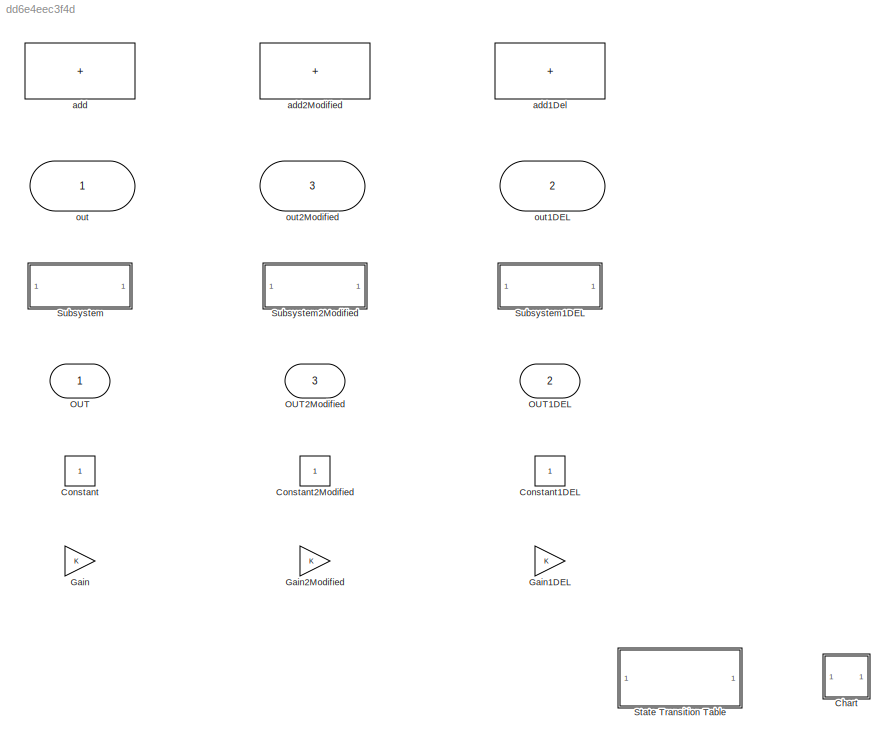
MODEL slx_dd6e4eec3f4d
KIND model
CONFIG AbsTol = auto
CONFIG EnableMultiTasking = off
CONFIG FixedStep = auto
CONFIG MaxStep = auto
CONFIG MinStep = auto
CONFIG RelTol = 1e-3
CONFIG SampleTimeConstraint = Unconstrained
CONFIG SolverName = VariableStepAuto
CONFIG StartTime = 0.0
CONFIG StopTime = 10.0
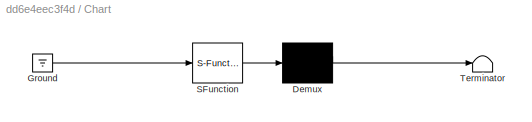
BLOCK [SubSystem] Chart
  ErrorFcn = Stateflow.Translate.translate
  PermitHierarchicalResolution = ExplicitOnly
  SFBlockType = Chart
  TreatAsAtomicUnit = on
BLOCK [Demux] Chart/ Demux 
  Outputs = 1
BLOCK [Ground] Chart/ Ground 
BLOCK [S-Function] Chart/ SFunction 
  EnableBusSupport = off
  FunctionName = sf_sfun
  PortCounts = [1 1]
  SFcnIsStateOwnerBlock = off
  SFunctionDeploymentMode = off
  Tag = Stateflow S-Function 3
BLOCK [Terminator] Chart/ Terminator 
BLOCK [Constant] Constant
BLOCK [Constant] Constant1DEL
BLOCK [Constant] Constant2Modified
BLOCK [Gain] Gain
BLOCK [Gain] Gain1DEL
BLOCK [Gain] Gain2Modified
BLOCK [Outport] OUT
BLOCK [Outport] OUT1DEL
  Port = 2
BLOCK [Outport] OUT2Modified
  Port = 3
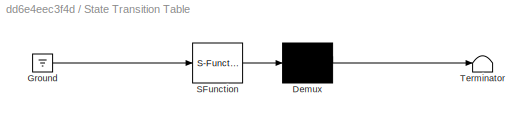
BLOCK [SubSystem] State Transition Table
  ErrorFcn = Stateflow.Translate.translate
  PermitHierarchicalResolution = ExplicitOnly
  SFBlockType = State Transition Table
  TreatAsAtomicUnit = on
BLOCK [Demux] State Transition Table/ Demux 
  Outputs = 1
BLOCK [Ground] State Transition Table/ Ground 
BLOCK [S-Function] State Transition Table/ SFunction 
  EnableBusSupport = off
  FunctionName = sf_sfun
  PortCounts = [1 1]
  SFcnIsStateOwnerBlock = off
  SFunctionDeploymentMode = off
  Tag = Stateflow S-Function 4
BLOCK [Terminator] State Transition Table/ Terminator 
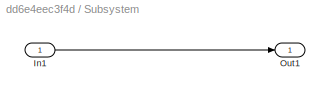
BLOCK [SubSystem] Subsystem
BLOCK [Inport] Subsystem/In1
BLOCK [Outport] Subsystem/Out1
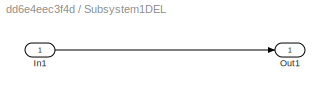
BLOCK [SubSystem] Subsystem1DEL
BLOCK [Inport] Subsystem1DEL/In1
BLOCK [Outport] Subsystem1DEL/Out1
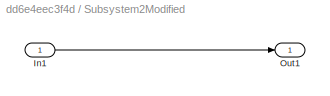
BLOCK [SubSystem] Subsystem2Modified
BLOCK [Inport] Subsystem2Modified/In1
BLOCK [Outport] Subsystem2Modified/Out1
BLOCK [Sum] add
  IconShape = rectangular
BLOCK [Sum] add1Del
  IconShape = rectangular
BLOCK [Sum] add2Modified
  IconShape = rectangular
BLOCK [Inport] out
BLOCK [Inport] out1DEL
  Port = 2
BLOCK [Inport] out2Modified
  Port = 3
LINE Subsystem/In1:1 -> Subsystem/Out1:1
LINE Subsystem1DEL/In1:1 -> Subsystem1DEL/Out1:1
LINE Subsystem2Modified/In1:1 -> Subsystem2Modified/Out1:1
CHART Chart states=0 transitions=0
CHART State Transition Table states=2 transitions=2
  STATE_LABEL 'state1'
  STATE_LABEL 'state2'
CHART  states=0 transitions=0
CHART  states=0 transitions=0
